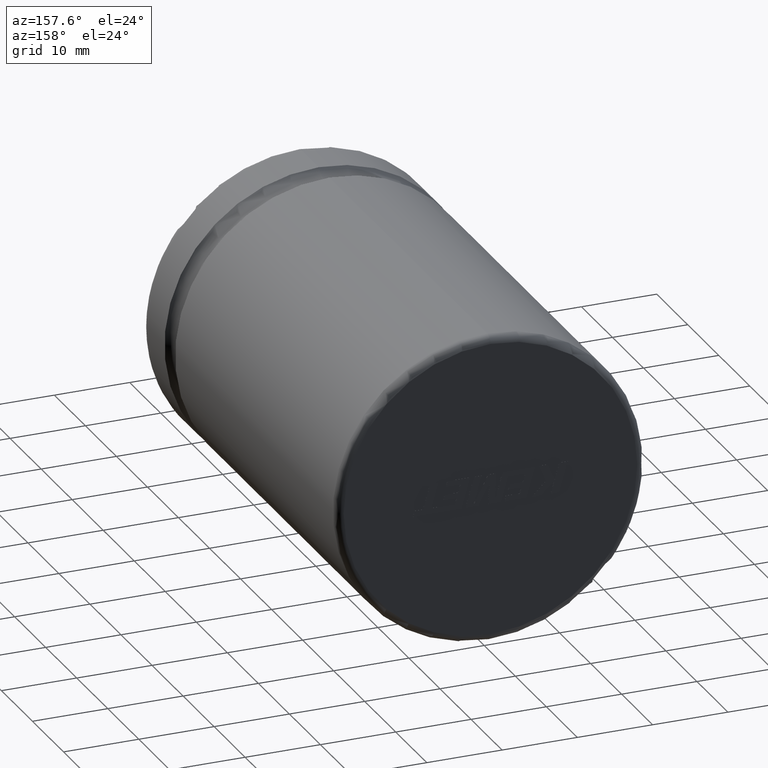
[diagram: clean part render]
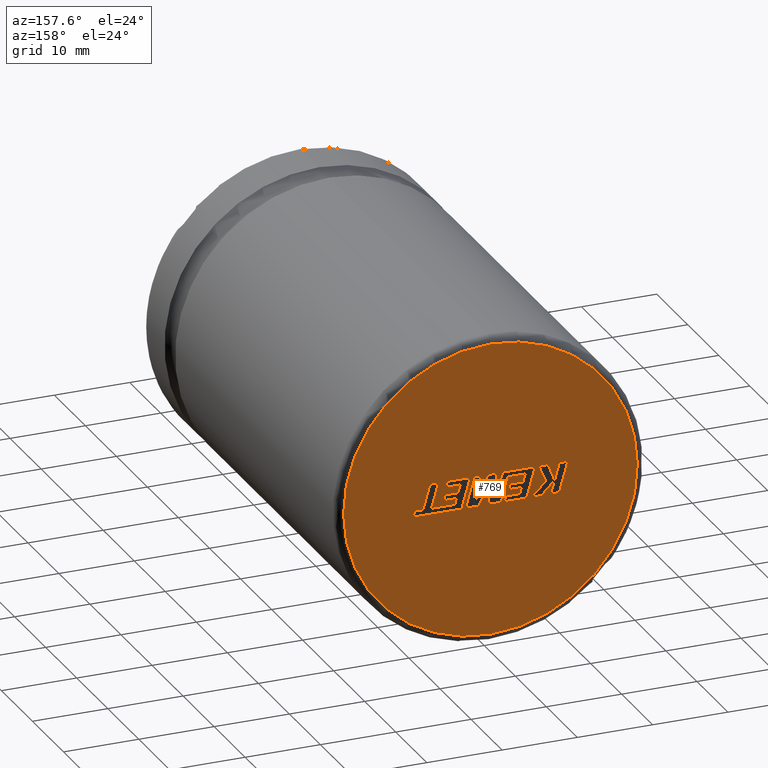
[diagram: same view with one face highlighted and labeled with its STEP entity id]
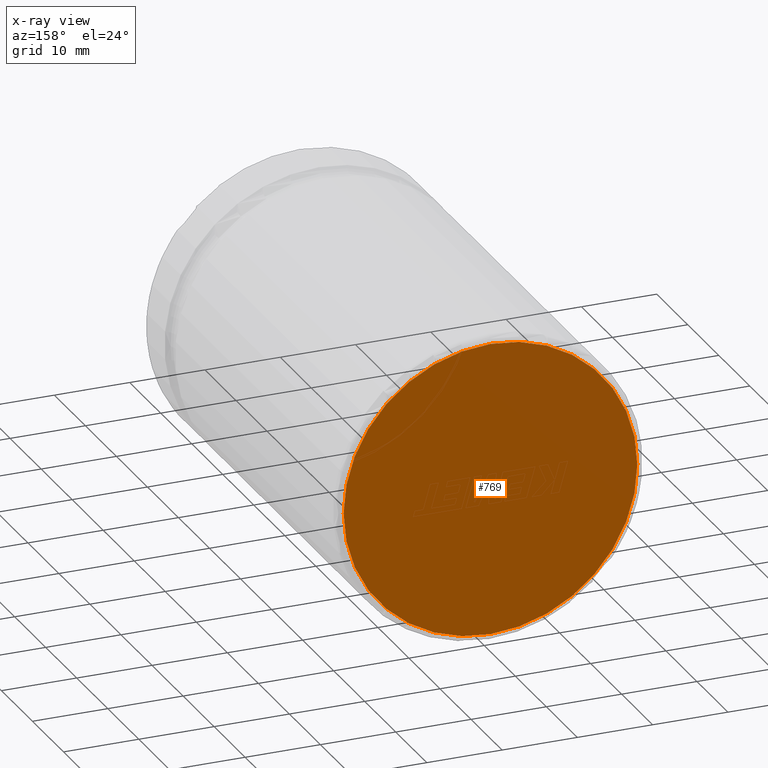
[diagram: x-ray of the same camera — body ghosted, the highlighted face saturated]
A machine part, auxiliary view. The second image highlights one B-rep face of the part: STEP entity #769.
The next image is the same camera in x-ray: the body ghosted, the highlighted face saturated — about 0% of this face is hidden behind the body in this view.
In plain terms, the highlighted planar face has unit normal (0, 1, 0).
Its self-contained STEP definition (entity closure, byte-faithful):
#30 = ORIENTED_EDGE ( 'NONE', *, *, #3851, .T. ) ;
#769 = ADVANCED_FACE ( 'NONE', ( #9018 ), #2821, .T. ) ;
#1538 = DIRECTION ( 'NONE',  ( 0.0000000000000000000, 1.000000000000000000, 0.0000000000000000000 ) ) ;
#1912 = DIRECTION ( 'NONE',  ( 0.0000000000000000000, 1.000000000000000000, 0.0000000000000000000 ) ) ;
#2204 = VERTEX_POINT ( 'NONE', #13724 ) ;
#2775 = DIRECTION ( 'NONE',  ( 0.0000000000000000000, 1.000000000000000000, 0.0000000000000000000 ) ) ;
#2821 = PLANE ( 'NONE',  #8331 ) ;
#2879 = CARTESIAN_POINT ( 'NONE',  ( 2.449293598294706500E-015, 62.00000000000000000, -19.50000000000000000 ) ) ;
#2919 = EDGE_LOOP ( 'NONE', ( #12757, #30 ) ) ;
#3581 = DIRECTION ( 'NONE',  ( 0.0000000000000000000, 0.0000000000000000000, 1.000000000000000000 ) ) ;
#3851 = EDGE_CURVE ( 'NONE', #5056, #2204, #6604, .T. ) ;
#5056 = VERTEX_POINT ( 'NONE', #2879 ) ;
#5197 = AXIS2_PLACEMENT_3D ( 'NONE', #8344, #1912, #10622 ) ;
#5315 = AXIS2_PLACEMENT_3D ( 'NONE', #10138, #1538, #3581 ) ;
#5947 = DIRECTION ( 'NONE',  ( 0.0000000000000000000, -0.0000000000000000000, 1.000000000000000000 ) ) ;
#6604 = CIRCLE ( 'NONE', #5197, 19.50000000000000000 ) ;
#6950 = CARTESIAN_POINT ( 'NONE',  ( 0.0000000000000000000, 62.00000000000000000, 0.0000000000000000000 ) ) ;
#7871 = CIRCLE ( 'NONE', #5315, 19.50000000000000000 ) ;
#8331 = AXIS2_PLACEMENT_3D ( 'NONE', #6950, #2775, #5947 ) ;
#8344 = CARTESIAN_POINT ( 'NONE',  ( 0.0000000000000000000, 62.00000000000000000, 0.0000000000000000000 ) ) ;
#9018 = FACE_OUTER_BOUND ( 'NONE', #2919, .T. ) ;
#10138 = CARTESIAN_POINT ( 'NONE',  ( 0.0000000000000000000, 62.00000000000000000, 0.0000000000000000000 ) ) ;
#10622 = DIRECTION ( 'NONE',  ( 0.0000000000000000000, 0.0000000000000000000, 1.000000000000000000 ) ) ;
#12757 = ORIENTED_EDGE ( 'NONE', *, *, #12846, .T. ) ;
#12846 = EDGE_CURVE ( 'NONE', #2204, #5056, #7871, .T. ) ;
#13724 = CARTESIAN_POINT ( 'NONE',  ( 0.0000000000000000000, 62.00000000000000000, 19.50000000000000000 ) ) ;